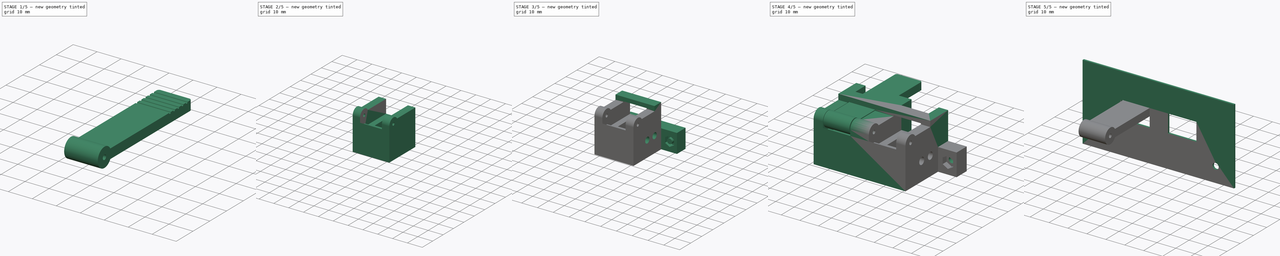
[diagram: build sequence overview — one tinted view per stage of 5, left to right]
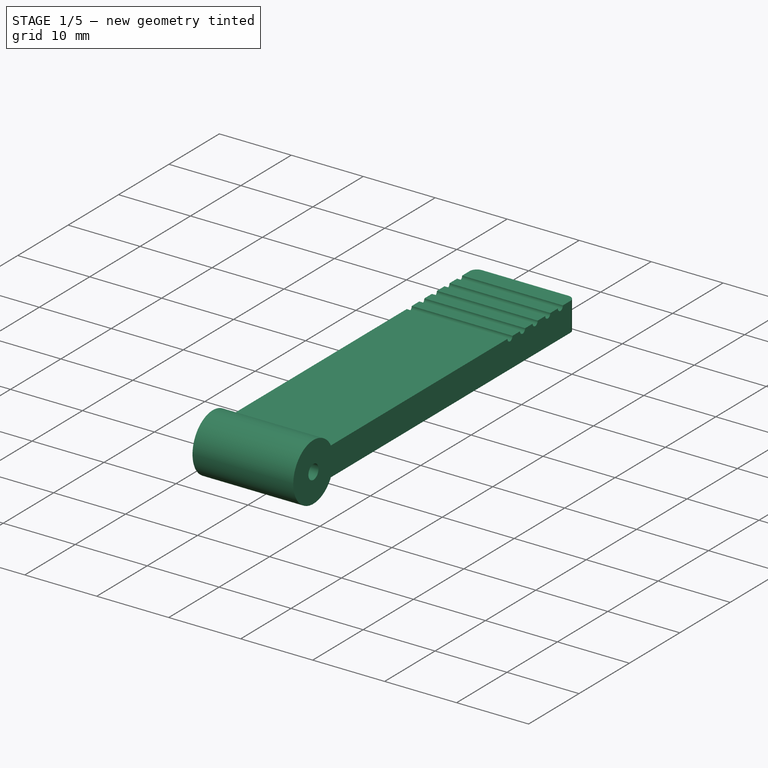
[diagram: stage 1 of 5 — iso view after this stage's code; geometry added in this stage tinted green]
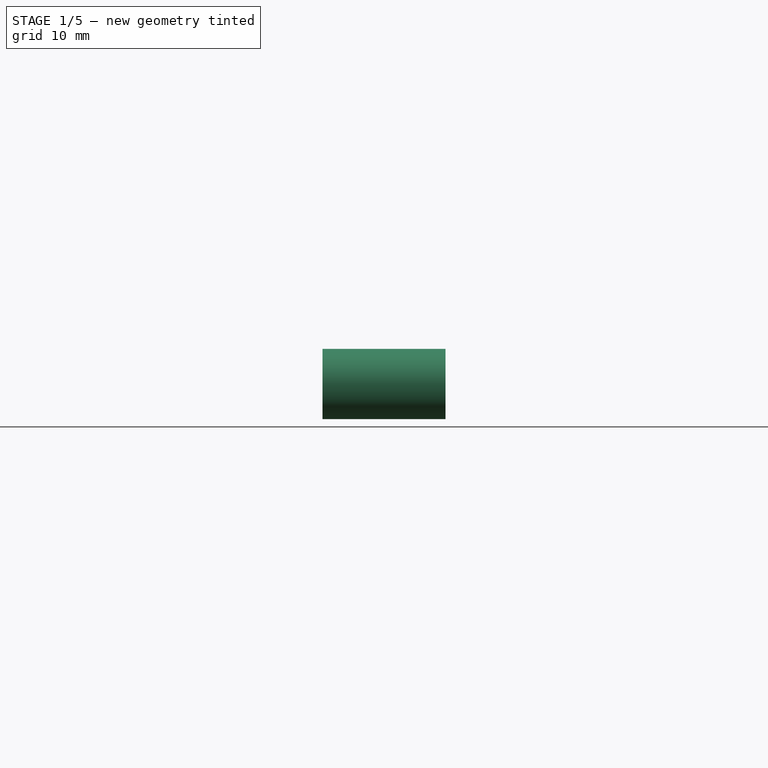
[diagram: stage 1 of 5 — front view after this stage's code; geometry added in this stage tinted green]
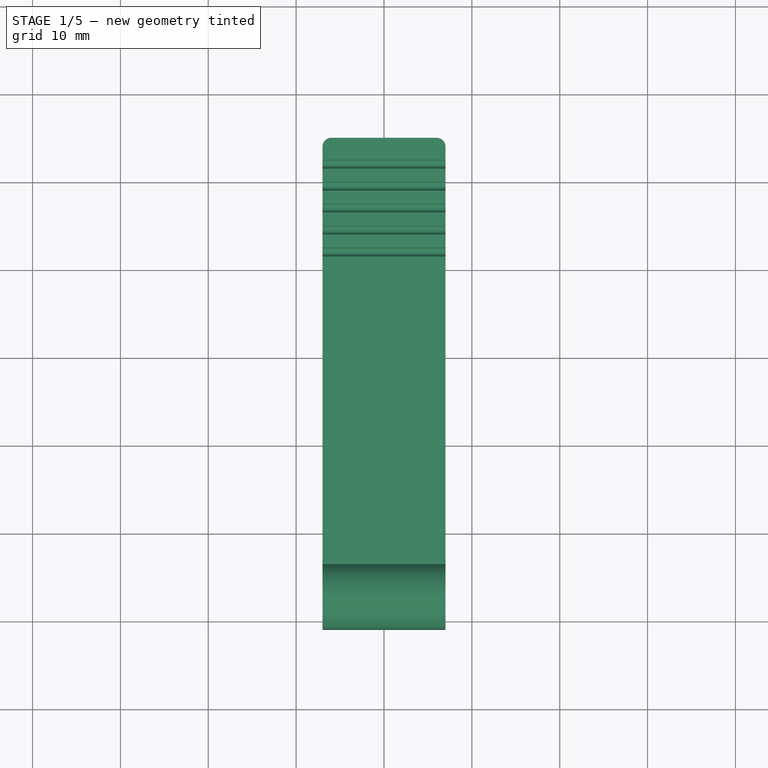
[diagram: stage 1 of 5 — top view after this stage's code; geometry added in this stage tinted green]
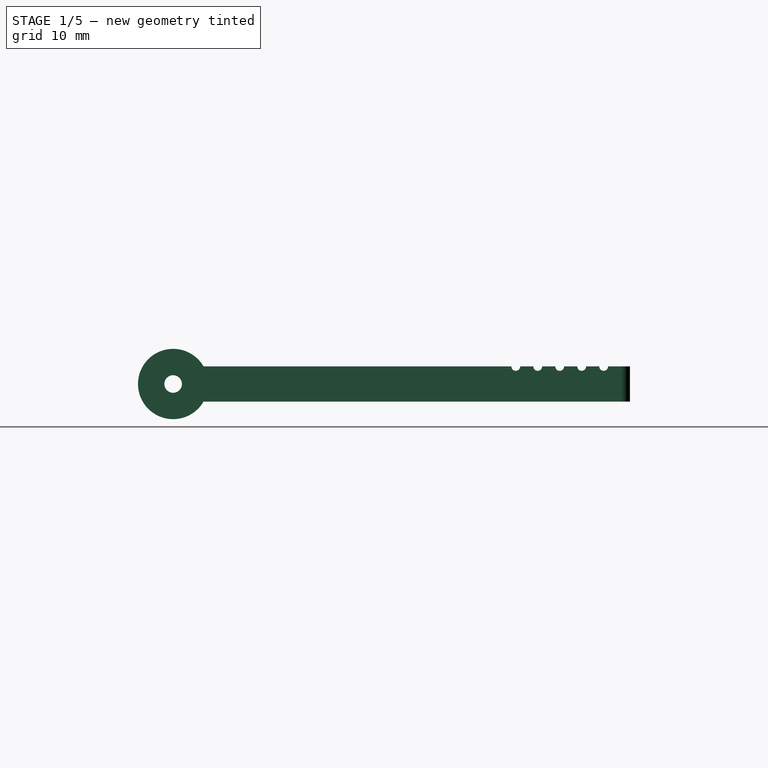
[diagram: stage 1 of 5 — right view after this stage's code; geometry added in this stage tinted green]
FCSTD DOCUMENT  (FreeCAD 1.0R39285 (Git))
Label: rotace_tlacitka
License: All rights reserved
LicenseURL: https://en.wikipedia.org/wiki/All_rights_reserved
objects: Sketcher::SketchObject×20, PartDesign::Pad×10, PartDesign::Pocket×10, PartDesign::SubShapeBinder×7, PartDesign::Fillet×4, PartDesign::Body×4, PartDesign::LinearPattern×2, PartDesign::Mirrored×1, PartDesign::Plane×1, App::Part×1
note: 130 computed .brp shape members not serialized (recipe doc carries the construction recipe); baked Part::Feature solids carry a one-line shape summary decoded from their .brp

FEATURE [Sketcher::SketchObject] Sketch
  ArcFitTolerance = 1e-06
  AttachmentSupport = -> [XY_Plane001]
  FullyConstrained = true
  MakeInternals = false
  MapMode = 5
  sketch-geometry (5):
    g0: LineSegment StartX=-7 StartY=-25 StartZ=0 EndX=7 EndY=-25 EndZ=0
    g1: LineSegment StartX=7 StartY=-25 StartZ=0 EndX=7 EndY=25 EndZ=0
    g2: LineSegment StartX=7 StartY=25 StartZ=0 EndX=-7 EndY=25 EndZ=0
    g3: LineSegment StartX=-7 StartY=25 StartZ=0 EndX=-7 EndY=-25 EndZ=0
    g4: GeomPoint [constr] X=0 Y=0 Z=0
  constraints (12):
    c: Coincident(g0,g1)
    c: Coincident(g1,g2)
    c: Coincident(g2,g3)
    c: Coincident(g3,g0)
    c: Horizontal(g0)
    c: Horizontal(g2)
    c: Vertical(g1)
    c: Vertical(g3)
    c: Symmetric(g2,g0,g4)
    c: Coincident(g4,g-1)
    c: Distance(g2,g2) = 14
    c: DistanceY(g1,g1) = 50
FEATURE [PartDesign::Pad] Pad
  Direction = (0,0,1)
  Length = 4
  Length2 = 10
  Midplane = true
  Profile = -> Sketch
  ReferenceAxis = -> Sketch [N_Axis]
  Refine = true
  Suppressed = false
  Type = 0
FEATURE [Sketcher::SketchObject] Sketch001
  ArcFitTolerance = 1e-06
  AttachmentSupport = -> [Pad]
  ExternalGeometry = -> [Pad]
  FullyConstrained = true
  MakeInternals = false
  MapMode = 5
  Placement = pos=(7,0,0) rot=(0.57735,0.57735,0.57735;2.0944rad)
  sketch-geometry (4):
    g0: Circle CenterX=-27 CenterY=0 CenterZ=0 NormalX=0 NormalY=0 NormalZ=1 AngleXU=0 Radius=1
    g1: Circle CenterX=-27 CenterY=0 CenterZ=0 NormalX=0 NormalY=0 NormalZ=1 AngleXU=0 Radius=4
    g2: GeomPoint [constr] X=-26 Y=0 Z=0
    g3: GeomPoint [constr] X=-25 Y=0 Z=0
  constraints (8):
    c: Diameter(g0) = 2
    c: PointOnObject(g0,g-1)
    c: Coincident(g1,g0)
    c: PointOnObject(g2,g0)
    c: Symmetric(g-3,g-3,g3)
    c: Horizontal(g2,g3)
    c: DistanceX(g0,g3) = 2
    c: Diameter(g1) = 8
FEATURE [PartDesign::Pad] Pad001
  BaseFeature = -> Pad
  Direction = (1,0,0)
  Length = 10
  Length2 = 10
  Profile = -> Sketch001
  ReferenceAxis = -> Sketch001 [N_Axis]
  Refine = true
  Suppressed = false
  Type = 3
  UpToFace = -> Pad [Face4]
FEATURE [Sketcher::SketchObject] Sketch002
  ArcFitTolerance = 1e-06
  AttachmentSupport = -> [Pad001]
  ExternalGeometry = -> [Pad001]
  FullyConstrained = true
  MakeInternals = false
  MapMode = 5
  Placement = pos=(7,0,0) rot=(0.57735,0.57735,0.57735;2.0944rad)
  sketch-geometry (1):
    g0: Circle CenterX=22 CenterY=2 CenterZ=0 NormalX=0 NormalY=0 NormalZ=1 AngleXU=0 Radius=0.5
  constraints (3):
    c: Diameter(g0) = 1
    c: DistanceX(g0,g-3) = 3
    c: PointOnObject(g0,g-4)
FEATURE [PartDesign::Pocket] Pocket
  BaseFeature = -> Pad001
  Direction = (-1,0,0)
  Length = 5
  Length2 = 5
  Profile = -> Sketch002
  ReferenceAxis = -> Sketch002 [N_Axis]
  Refine = true
  Suppressed = false
  Type = 1
FEATURE [PartDesign::LinearPattern] LinearPattern
  BaseFeature = -> Pocket
  Direction = -> Pocket [Edge16]
  Length = 10
  Mode = 0
  Occurrences = 5
  Offset = 2.5
  Originals = -> [Pocket]
  Refine = true
  Suppressed = false
  TransformMode = 0
FEATURE [PartDesign::Fillet] Fillet
  Base = -> LinearPattern [Edge21,Edge8]
  BaseFeature = -> LinearPattern
  Radius = 1
  Refine = true
  SupportTransform = false
  Suppressed = false
  UseAllEdges = false
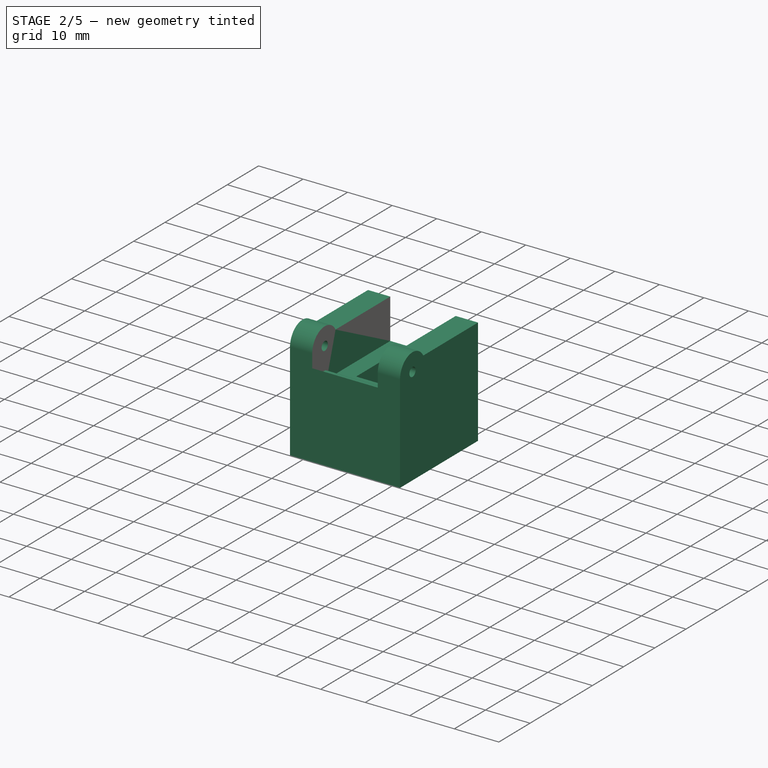
[diagram: stage 2 of 5 — iso view after this stage's code; geometry added in this stage tinted green]
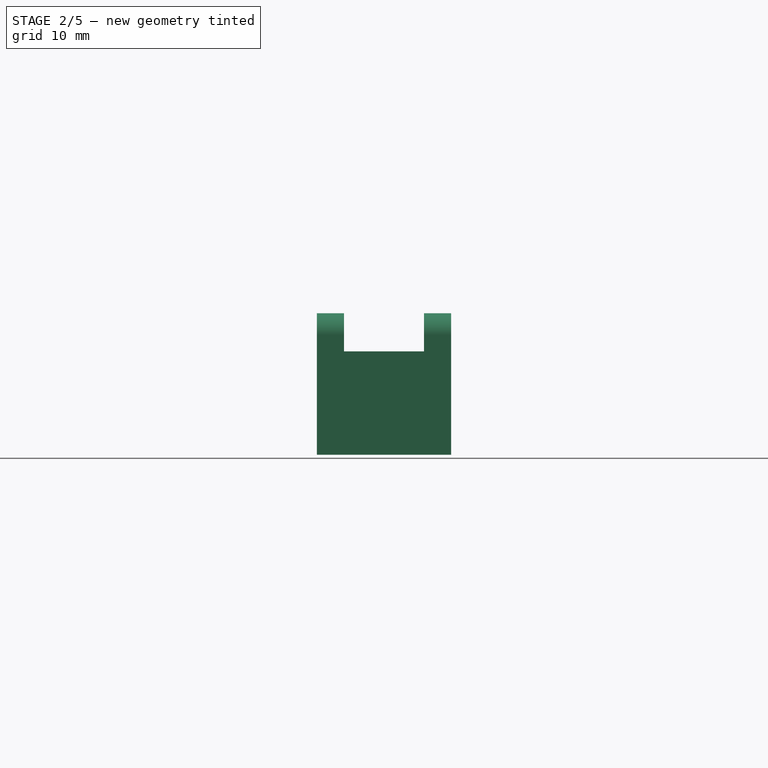
[diagram: stage 2 of 5 — front view after this stage's code; geometry added in this stage tinted green]
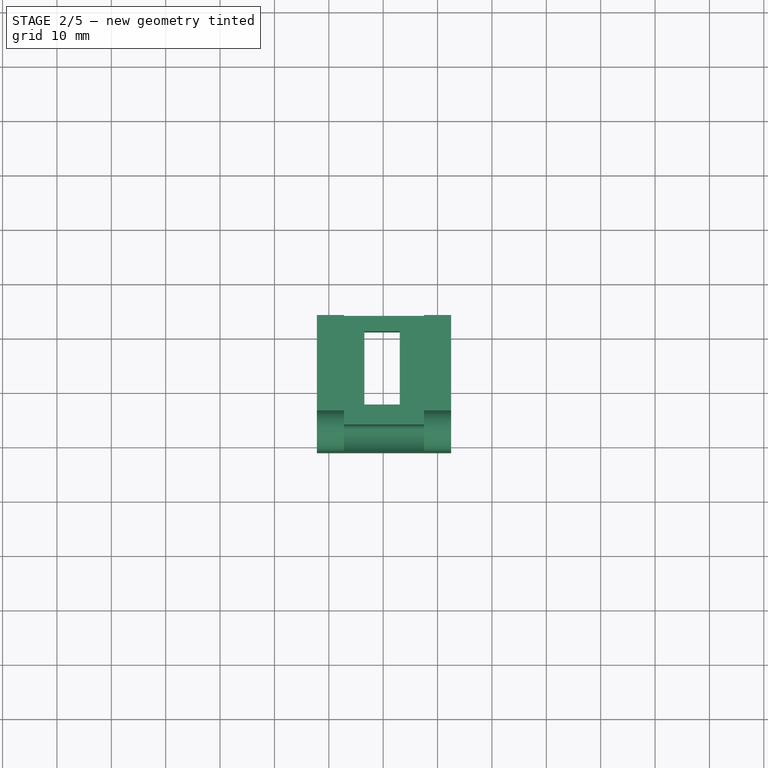
[diagram: stage 2 of 5 — top view after this stage's code; geometry added in this stage tinted green]
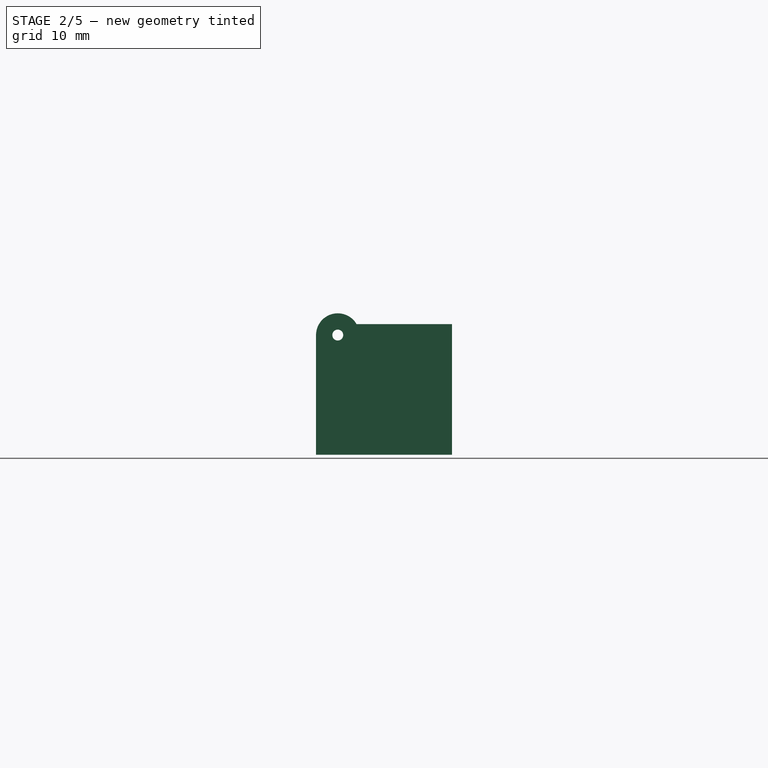
[diagram: stage 2 of 5 — right view after this stage's code; geometry added in this stage tinted green]
FEATURE [PartDesign::Fillet] Fillet001
  Base = -> Fillet [Edge20,Edge24,Edge29,Edge34,Edge37,Edge42,Edge45,Edge43,Edge39,Edge35]
  BaseFeature = -> Fillet
  Radius = 0.5
  Refine = true
  SupportTransform = false
  Suppressed = false
  UseAllEdges = false
FEATURE [PartDesign::SubShapeBinder] Binder
  BindCopyOnChange = 0
  BindMode = 0
  ClaimChildren = false
  Context = -> Part [Body001.Binder.]
  Fuse = false
  MakeFace = true
  OffsetFill = false
  OffsetIntersection = false
  OffsetJoinType = 0
  OffsetOpenResult = false
  PartialLoad = false
  Placement = pos=(-0.2,0,0) rot=(0,0,1;0rad)
  Refine = true
  Relative = true
  Support = -> [Body[Fillet001.Face27]]
  _Version = 2
FEATURE [Sketcher::SketchObject] Sketch003
  ArcFitTolerance = 1e-06
  AttachmentSupport = -> [Binder]
  ExternalGeometry = -> [Binder]
  FullyConstrained = true
  MakeInternals = false
  MapMode = 5
  Placement = pos=(-7.2,0,0) rot=(0.57735,-0.57735,-0.57735;2.0944rad)
  sketch-geometry (6):
    g0: Circle CenterX=27 CenterY=0 CenterZ=0 NormalX=0 NormalY=0 NormalZ=1 AngleXU=0 Radius=1
    g1: ArcOfCircle CenterX=27 CenterY=0 CenterZ=0 NormalX=0 NormalY=0 NormalZ=1 AngleXU=0 Radius=4 StartAngle=0 EndAngle=2.61799
    g2: LineSegment StartX=23.5359 StartY=2 StartZ=0 EndX=6 EndY=2 EndZ=0
    g3: LineSegment StartX=6 StartY=2 StartZ=0 EndX=6 EndY=-22 EndZ=0
    g4: LineSegment StartX=6 StartY=-22 StartZ=0 EndX=31 EndY=-22 EndZ=0
    g5: LineSegment StartX=31 StartY=-22 StartZ=0 EndX=31 EndY=0 EndZ=0
  constraints (15):
    c: Coincident(g0,g-4)
    c: Equal(g0,g-4)
    c: Coincident(g1,g0)
    c: Vertical(g3)
    c: Coincident(g3,g4)
    c: Horizontal(g4)
    c: Coincident(g4,g5)
    c: Vertical(g5)
    c: Coincident(g1,g2)
    c: Tangent(g1,g5) = -1.5708
    c: Equal(g1,g-3)
    c: Tangent(g2,g-5)
    c: Distance(g-3,g4) = 20
    c: Coincident(g2,g3)
    c: DistanceX(g4,g4) = 25
FEATURE [PartDesign::Pad] Pad002
  Direction = (-1,0,0)
  Length = 5
  Length2 = 10
  Placement = pos=(-0.2,0,0) rot=(0,0,1;0rad)
  Profile = -> Sketch003
  ReferenceAxis = -> Sketch003 [N_Axis]
  Refine = true
  Suppressed = false
  Type = 0
FEATURE [Sketcher::SketchObject] Sketch004
  ArcFitTolerance = 1e-06
  AttachmentSupport = -> [Pad002]
  ExternalGeometry = -> [Pad002,Binder]
  FullyConstrained = true
  MakeInternals = false
  MapMode = 5
  Placement = pos=(-7.2,0,0) rot=(0.57735,0.57735,0.57735;2.0944rad)
  sketch-geometry (13):
    g0: LineSegment [constr] StartX=-31 StartY=-12 StartZ=0 EndX=-6 EndY=-12 EndZ=0
    g1: Circle CenterX=-18.5 CenterY=-12 CenterZ=0 NormalX=0 NormalY=0 NormalZ=1 AngleXU=0 Radius=0.6
    g2: Circle CenterX=-11.9 CenterY=-12 CenterZ=0 NormalX=0 NormalY=0 NormalZ=1 AngleXU=0 Radius=0.6
    g3: LineSegment StartX=-31 StartY=-22 StartZ=0 EndX=-6 EndY=-22 EndZ=0
    g4: LineSegment StartX=-6 StartY=-22 StartZ=0 EndX=-6 EndY=-7 EndZ=0
    g5: LineSegment StartX=-6 StartY=-7 StartZ=0 EndX=-26 EndY=-7 EndZ=0
    g6: LineSegment StartX=-31 StartY=-3 StartZ=0 EndX=-31 EndY=-22 EndZ=0
    g7: ArcOfCircle CenterX=-27 CenterY=0 CenterZ=0 NormalX=0 NormalY=0 NormalZ=1 AngleXU=0 Radius=5 StartAngle=3.78509 EndAngle=4.71239
    g8: LineSegment StartX=-26 StartY=-6 StartZ=0 EndX=-26 EndY=-7 EndZ=0
    g9: Circle [constr] CenterX=-27 CenterY=0 CenterZ=0 NormalX=0 NormalY=0 NormalZ=1 AngleXU=0 Radius=4
    g10: GeomPoint [constr] X=-27 Y=-4 Z=0
    g11: GeomPoint [constr] X=-27 Y=-5 Z=0
    g12: ArcOfCircle CenterX=-27 CenterY=-6 CenterZ=0 NormalX=0 NormalY=0 NormalZ=1 AngleXU=0 Radius=1 StartAngle=-9e-16 EndAngle=1.57079
  constraints (34):
    c: PointOnObject(g0,g-3)
    c: PointOnObject(g0,g-4)
    c: Horizontal(g0)
    c: Symmetric(g0,g0,g1)
    c: PointOnObject(g2,g0)
    c: DistanceX(g1,g2) = 6.6
    c: Equal(g1,g2)
    c: Diameter(g1) = 1.2
    c: Coincident(g3,g4)
    c: Coincident(g4,g5)
    c: Coincident(g6,g3)
    c: Horizontal(g3)
    c: Horizontal(g5)
    c: Vertical(g4)
    c: Vertical(g6)
    c: Coincident(g3,g-3)
    c: PointOnObject(g4,g-4)
    c: Coincident(g7,g-5)
    c: Vertical(g8)
    c: Coincident(g5,g8)
    c: Coincident(g6,g7)
    c: DistanceY(g0,g4) = 5
    c: Coincident(g9,g7)
    c: PointOnObject(g-6,g9)
    c: PointOnObject(g10,g9)
    c: PointOnObject(g11,g7)
    c: Vertical(g10,g11)
    c: Vertical(g10,g7)
    c: Distance(g10,g11) = 1
    c: Tangent(g7,g12) = 1.5708
    c: Tangent(g8,g12) = 1.5708
    c: Radius(g12) = 1
    c: DistanceY(g12,g11) = 1
    c: DistanceY(g0,g-7) = 10
FEATURE [PartDesign::Pad] Pad003
  BaseFeature = -> Pad002
  Direction = (1,0,0)
  Length = 4.5
  Length2 = 10
  Offset = -0.5
  Placement = pos=(-0.2,0,0) rot=(0,0,1;0rad)
  Profile = -> Sketch004
  ReferenceAxis = -> Sketch004 [N_Axis]
  Refine = true
  Suppressed = false
  Type = 3
  UpToFace = -> Fillet001 [Face1]
FEATURE [Sketcher::SketchObject] Sketch005
  ArcFitTolerance = 1e-06
  AttachmentSupport = -> [Pad003]
  ExternalGeometry = -> [Pad003]
  FullyConstrained = true
  MakeInternals = false
  MapMode = 5
  Placement = pos=(-0.2,0,-22) rot=(1,0,0;3.14159rad)
  sketch-geometry (4):
    g0: LineSegment StartX=-3.25 StartY=22.3 StartZ=0 EndX=-3.25 EndY=8.8 EndZ=0
    g1: LineSegment StartX=-3.25 StartY=8.8 StartZ=0 EndX=3.25 EndY=8.8 EndZ=0
    g2: LineSegment StartX=3.25 StartY=8.8 StartZ=0 EndX=3.25 EndY=22.3 EndZ=0
    g3: LineSegment StartX=3.25 StartY=22.3 StartZ=0 EndX=-3.25 EndY=22.3 EndZ=0
  constraints (11):
    c: Coincident(g0,g1)
    c: Coincident(g1,g2)
    c: Coincident(g2,g3)
    c: Coincident(g3,g0)
    c: Vertical(g0)
    c: Vertical(g2)
    c: Horizontal(g3)
    c: DistanceX(g3,g3) = 6.5
    c: DistanceY(g2,g2) = 13.5
    c: DistanceY(g1,g-3) = 2.5
    c: Symmetric(g1,g0,g-2)
FEATURE [PartDesign::Pocket] Pocket001
  BaseFeature = -> Pad003
  Direction = (0,0,1)
  Length = 5
  Length2 = 5
  Placement = pos=(-0.2,0,0) rot=(0,0,1;0rad)
  Profile = -> Sketch005
  ReferenceAxis = -> Sketch005 [N_Axis]
  Refine = true
  Suppressed = false
  Type = 1
FEATURE [Sketcher::SketchObject] Sketch006
  ArcFitTolerance = 1e-06
  AttachmentSupport = -> [Pocket001]
  ExternalGeometry = -> [Pocket001]
  FullyConstrained = true
  MakeInternals = false
  MapMode = 5
  Placement = pos=(7.5,0,0) rot=(0.57735,0.57735,0.57735;2.0944rad)
  sketch-geometry (6):
    g0: Circle CenterX=-27 CenterY=0 CenterZ=0 NormalX=0 NormalY=0 NormalZ=1 AngleXU=0 Radius=1
    g1: ArcOfCircle CenterX=-27 CenterY=0 CenterZ=0 NormalX=0 NormalY=0 NormalZ=1 AngleXU=0 Radius=4 StartAngle=0.523599 EndAngle=3.14159
    g2: LineSegment StartX=-31 StartY=5e-16 StartZ=0 EndX=-31 EndY=-22 EndZ=0
    g3: LineSegment StartX=-31 StartY=-22 StartZ=0 EndX=-6 EndY=-22 EndZ=0
    g4: LineSegment StartX=-6 StartY=-22 StartZ=0 EndX=-6 EndY=2 EndZ=0
    g5: LineSegment StartX=-6 StartY=2 StartZ=0 EndX=-23.5359 EndY=2 EndZ=0
  constraints (13):
    c: Coincident(g0,g-4)
    c: Coincident(g1,g0)
    c: Coincident(g1,g-4)
    c: Tangent(g1,g2) = -1.5708
    c: Coincident(g2,g3)
    c: Coincident(g3,g-7)
    c: Horizontal(g3)
    c: Coincident(g3,g4)
    c: Coincident(g4,g-5)
    c: Coincident(g4,g5)
    c: Coincident(g5,g1)
    c: Horizontal(g5)
    c: Equal(g0,g-3)
FEATURE [PartDesign::Pad] Pad004
  BaseFeature = -> Pocket001
  Direction = (1,0,0)
  Length = 5
  Length2 = 10
  Placement = pos=(-0.2,0,0) rot=(0,0,1;0rad)
  Profile = -> Sketch006
  ReferenceAxis = -> Sketch006 [N_Axis]
  Refine = true
  Suppressed = false
  Type = 0
FEATURE [Sketcher::SketchObject] Sketch012
  ArcFitTolerance = 1e-06
  AttachmentSupport = -> [Fillet001]
  FullyConstrained = true
  MakeInternals = false
  MapMode = 5
  Placement = pos=(0,0,-2) rot=(1,0,0;3.14159rad)
  sketch-geometry (1):
    g0: Circle CenterX=0 CenterY=4 CenterZ=0 NormalX=0 NormalY=0 NormalZ=1 AngleXU=0 Radius=3.75
  constraints (3):
    c: PointOnObject(g0,g-2)
    c: Diameter(g0) = 7.5
    c: Distance(g0,g-1) = 4
FEATURE [PartDesign::Pocket] Pocket004
  BaseFeature = -> Fillet001
  Direction = (0,0,1)
  Length = 1
  Length2 = 5
  Profile = -> Sketch012
  ReferenceAxis = -> Sketch012 [N_Axis]
  Refine = true
  Suppressed = false
  Type = 0
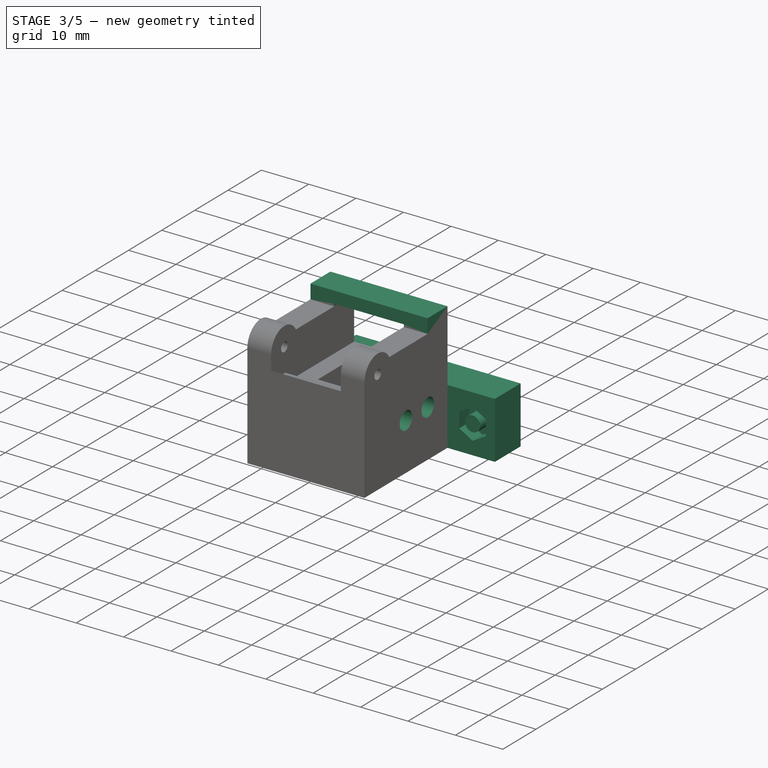
[diagram: stage 3 of 5 — iso view after this stage's code; geometry added in this stage tinted green]
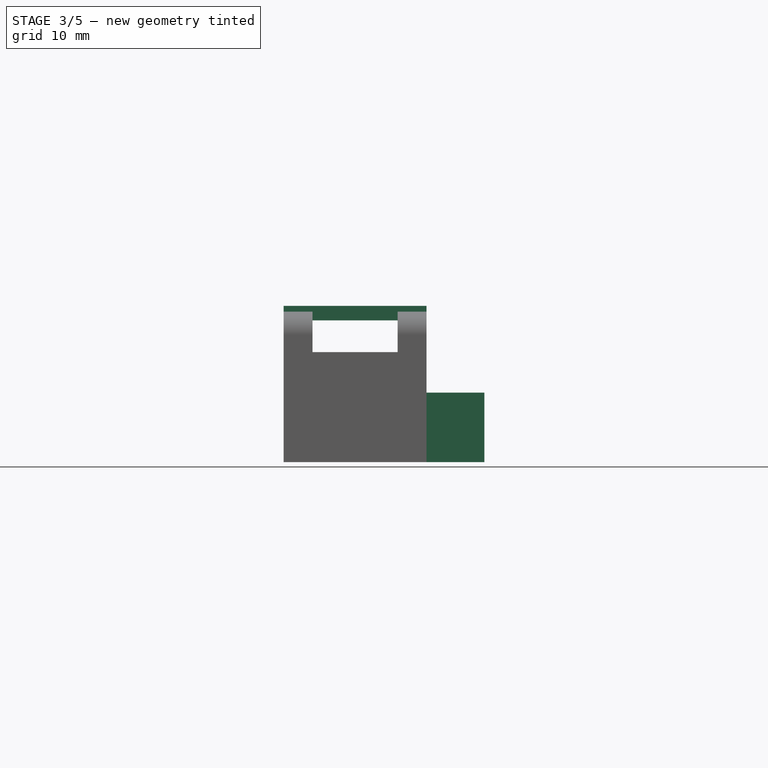
[diagram: stage 3 of 5 — front view after this stage's code; geometry added in this stage tinted green]
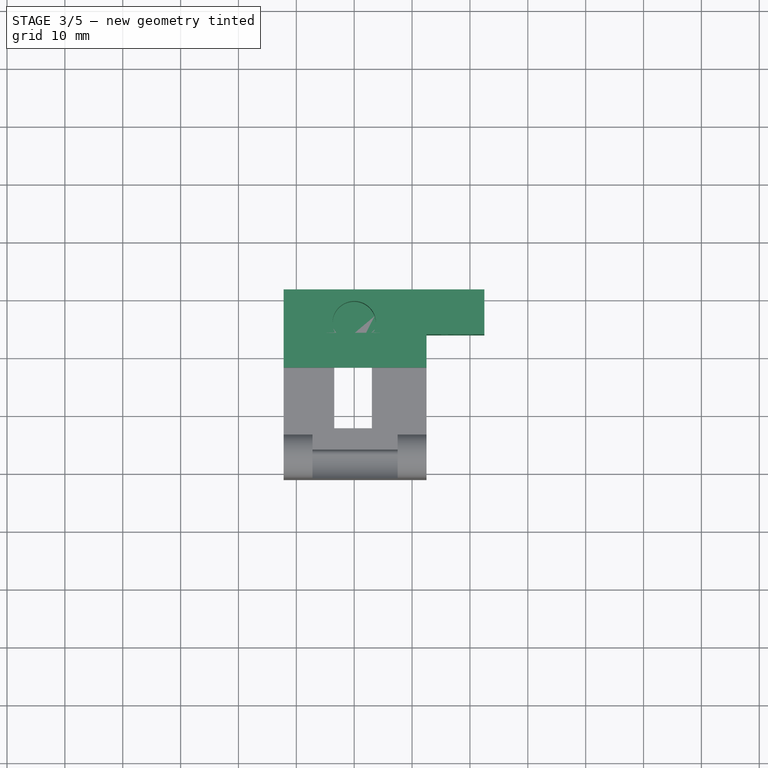
[diagram: stage 3 of 5 — top view after this stage's code; geometry added in this stage tinted green]
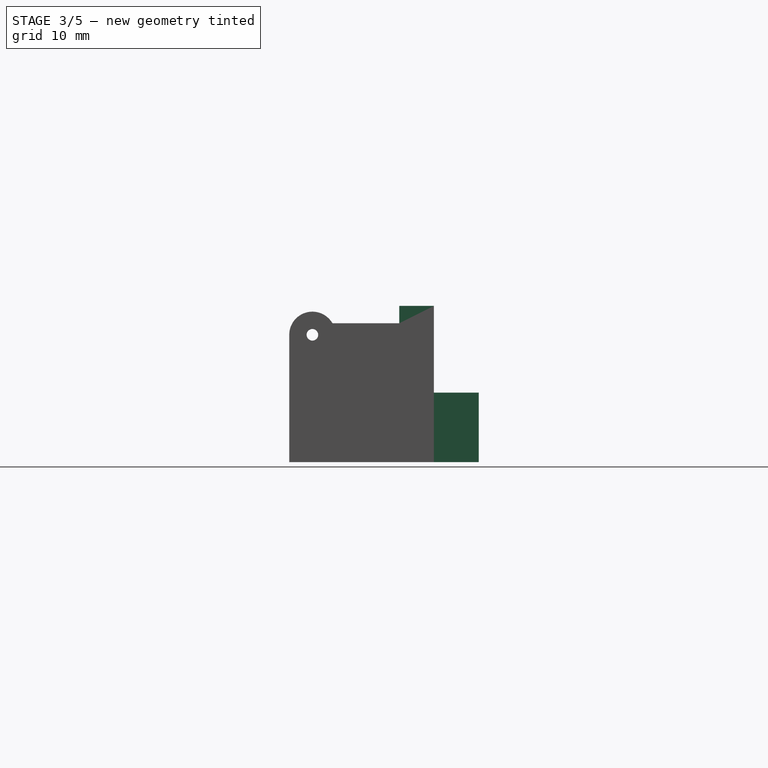
[diagram: stage 3 of 5 — right view after this stage's code; geometry added in this stage tinted green]
FEATURE [Sketcher::SketchObject] Sketch007
  ArcFitTolerance = 1e-06
  AttachmentSupport = -> [Pad004]
  ExternalGeometry = -> [Pad004]
  FullyConstrained = true
  MakeInternals = false
  MapMode = 5
  Placement = pos=(-0.2,-6,0) rot=(0,0.707107,0.707107;3.14159rad)
  sketch-geometry (8):
    g0: LineSegment StartX=-12.7 StartY=2 StartZ=0 EndX=-7.7 EndY=2 EndZ=0
    g1: LineSegment StartX=12 StartY=2 StartZ=0 EndX=12 EndY=5 EndZ=0
    g2: LineSegment StartX=12 StartY=5 StartZ=0 EndX=-12.7 EndY=5 EndZ=0
    g3: LineSegment StartX=-12.7 StartY=5 StartZ=0 EndX=-12.7 EndY=2 EndZ=0
    g4: LineSegment StartX=7 StartY=2 StartZ=0 EndX=7 EndY=2.5 EndZ=0
    g5: LineSegment StartX=7 StartY=2.5 StartZ=0 EndX=-7.7 EndY=2.5 EndZ=0
    g6: LineSegment StartX=-7.7 StartY=2.5 StartZ=0 EndX=-7.7 EndY=2 EndZ=0
    g7: LineSegment StartX=7 StartY=2 StartZ=0 EndX=12 EndY=2 EndZ=0
  constraints (22):
    c: Coincident(g7,g1)
    c: Coincident(g1,g2)
    c: Coincident(g2,g3)
    c: Coincident(g3,g0)
    c: Horizontal(g2)
    c: Vertical(g1)
    c: Vertical(g3)
    c: Coincident(g0,g-4)
    c: Coincident(g7,g-3)
    c: Coincident(g4,g5)
    c: Coincident(g5,g6)
    c: Horizontal(g5)
    c: Vertical(g4)
    c: Vertical(g6)
    c: PointOnObject(g0,g-4)
    c: DistanceY(g1,g1) = 3
    c: Coincident(g4,g7)
    c: Horizontal(g7)
    c: Coincident(g0,g6)
    c: PointOnObject(g-4,g6)
    c: PointOnObject(g-3,g4)
    c: Distance(g4,g4) = 0.5
FEATURE [PartDesign::Pad] Pad005
  BaseFeature = -> Pad004
  Direction = (0,1,-2e-16)
  Length = 6
  Length2 = 10
  Placement = pos=(-0.2,0,0) rot=(0,0,1;0rad)
  Profile = -> Sketch007
  ReferenceAxis = -> Sketch007 [N_Axis]
  Refine = true
  Reversed = true
  Suppressed = false
  Type = 0
FEATURE [PartDesign::Body] Body  label="páčka"
  AllowCompound = false
  Group = -> [Sketch,Pad,Sketch001,Pad001,Sketch002,Pocket,LinearPattern,Fillet,Fillet001,Sketch012,Pocket004]
  Origin = -> Origin001
  Tip = -> Pocket004
FEATURE [Sketcher::SketchObject] Sketch013
  ArcFitTolerance = 1e-06
  AttachmentSupport = -> [Pad005]
  ExternalGeometry = -> [Pad005]
  FullyConstrained = true
  MakeInternals = false
  MapMode = 5
  Placement = pos=(3.05,0,0) rot=(0.57735,-0.57735,-0.57735;2.0944rad)
  sketch-geometry (4):
    g0: GeomPoint X=12.5 Y=-12 Z=0
    g1: Circle CenterX=11.9 CenterY=-12 CenterZ=0 NormalX=0 NormalY=0 NormalZ=1 AngleXU=0 Radius=1.9
    g2: Circle CenterX=18.5 CenterY=-12 CenterZ=0 NormalX=0 NormalY=0 NormalZ=1 AngleXU=0 Radius=1.9
    g3: GeomPoint X=13.8 Y=-12 Z=0
  constraints (9):
    c: PointOnObject(g0,g-4)
    c: Coincident(g1,g-4)
    c: Coincident(g2,g-3)
    c: PointOnObject(g3,g1)
    c: Horizontal(g3,g0)
    c: Horizontal(g0,g1)
    c: Equal(g1,g2)
    c: Distance(g0,g3) = 1.3
    c: Diameter(g2) = 3.8
FEATURE [PartDesign::Pocket] Pocket005
  BaseFeature = -> Pad005
  Direction = (1,0,0)
  Length = 0
  Length2 = 5
  Placement = pos=(-0.2,0,0) rot=(0,0,1;0rad)
  Profile = -> Sketch013
  ReferenceAxis = -> Sketch013 [N_Axis]
  Refine = true
  Suppressed = false
  Type = 3
  UpToFace = -> Pad005 [Face29]
FEATURE [PartDesign::SubShapeBinder] Binder001
  BindCopyOnChange = 0
  BindMode = 0
  ClaimChildren = false
  Context = -> Part [Body001.Binder001.]
  Fuse = false
  MakeFace = true
  OffsetFill = false
  OffsetIntersection = false
  OffsetJoinType = 0
  OffsetOpenResult = false
  PartialLoad = false
  Refine = true
  Relative = true
  Support = -> [Body[Pocket004.Face6]]
  _Version = 2
FEATURE [Sketcher::SketchObject] Sketch014
  ArcFitTolerance = 1e-06
  AttachmentSupport = -> [Pocket005]
  ExternalGeometry = -> [Binder001,Pocket005]
  FullyConstrained = true
  MakeInternals = false
  MapMode = 5
  Placement = pos=(-0.2,0,-22) rot=(1,0,0;3.14159rad)
  sketch-geometry (6):
    g0: GeomPoint X=0.2 Y=0.25 Z=0
    g1: GeomPoint X=0.2 Y=-1.75 Z=0
    g2: LineSegment StartX=-12 StartY=6 StartZ=0 EndX=-12 EndY=-1.75 EndZ=0
    g3: LineSegment StartX=-12 StartY=-1.75 StartZ=0 EndX=22.7 EndY=-1.75 EndZ=0
    g4: LineSegment StartX=22.7 StartY=-1.75 StartZ=0 EndX=22.7 EndY=6 EndZ=0
    g5: LineSegment StartX=22.7 StartY=6 StartZ=0 EndX=-12 EndY=6 EndZ=0
  constraints (15):
    c: Distance(g0,g1) = 2
    c: Coincident(g2,g3)
    c: Coincident(g3,g4)
    c: Coincident(g5,g2)
    c: Vertical(g2)
    c: Vertical(g4)
    c: Horizontal(g3)
    c: Coincident(g2,g-4)
    c: PointOnObject(g1,g3)
    c: Vertical(g1,g0)
    c: PointOnObject(g0,g-3)
    c: Vertical(g0,g-3)
    c: Coincident(g5,g4)
    c: Parallel(g5,g-4)
    c: DistanceX(g-4,g4) = 10
FEATURE [PartDesign::Pad] Pad006
  BaseFeature = -> Pocket005
  Direction = (0,0,-1)
  Length = 12
  Length2 = 10
  Placement = pos=(-0.2,0,0) rot=(0,0,1;0rad)
  Profile = -> Sketch014
  ReferenceAxis = -> Sketch014 [N_Axis]
  Refine = true
  Reversed = true
  Suppressed = false
  Type = 0
FEATURE [Sketcher::SketchObject] Sketch015
  ArcFitTolerance = 1e-06
  AttachmentSupport = -> [Pad006]
  ExternalGeometry = -> [Binder001]
  FullyConstrained = true
  MakeInternals = false
  MapMode = 5
  Placement = pos=(-0.2,0,-7) rot=(0,0,1;0rad)
  sketch-geometry (1):
    g0: Circle CenterX=0.2 CenterY=-4 CenterZ=0 NormalX=0 NormalY=0 NormalZ=1 AngleXU=0 Radius=3.75
  constraints (2):
    c: Coincident(g0,g-3)
    c: Equal(g0,g-3)
FEATURE [PartDesign::Pocket] Pocket006
  BaseFeature = -> Pad006
  Direction = (0,0,-1)
  Length = 12
  Length2 = 5
  Placement = pos=(-0.2,0,0) rot=(0,0,1;0rad)
  Profile = -> Sketch015
  ReferenceAxis = -> Sketch015 [N_Axis]
  Refine = true
  Suppressed = false
  Type = 0
FEATURE [Sketcher::SketchObject] Sketch016
  ArcFitTolerance = 1e-06
  AttachmentSupport = -> [Pocket006]
  ExternalGeometry = -> [Pocket006]
  FullyConstrained = true
  MakeInternals = false
  MapMode = 5
  Placement = pos=(-0.2,-6,0) rot=(1,0,0;1.5708rad)
  sketch-geometry (9):
    g0: Circle CenterX=18 CenterY=-16 CenterZ=0 NormalX=0 NormalY=0 NormalZ=1 AngleXU=0 Radius=1.6
    g1: LineSegment StartX=18 StartY=-12.7668 StartZ=0 EndX=15.2 EndY=-14.3834 EndZ=0
    g2: LineSegment StartX=15.2 StartY=-14.3834 StartZ=0 EndX=15.2 EndY=-17.6166 EndZ=0
    g3: LineSegment StartX=15.2 StartY=-17.6166 StartZ=0 EndX=18 EndY=-19.2332 EndZ=0
    g4: LineSegment StartX=18 StartY=-19.2332 StartZ=0 EndX=20.8 EndY=-17.6166 EndZ=0
    g5: LineSegment StartX=20.8 StartY=-17.6166 StartZ=0 EndX=20.8 EndY=-14.3834 EndZ=0
    g6: LineSegment StartX=20.8 StartY=-14.3834 StartZ=0 EndX=18 EndY=-12.7668 EndZ=0
    g7: Circle [constr] CenterX=18 CenterY=-16 CenterZ=0 NormalX=0 NormalY=0 NormalZ=1 AngleXU=0 Radius=3.23316
    g8: LineSegment [constr] StartX=22.7 StartY=-16 StartZ=0 EndX=-12 EndY=-16 EndZ=0
  constraints (22):
    c: Diameter(g0) = 3.2
    c: Coincident(g1,g2)
    c: Coincident(g2,g3)
    c: Coincident(g3,g4)
    c: Coincident(g4,g5)
    c: Coincident(g5,g6)
    c: Coincident(g6,g1)
    c: Equal(g1, g2-g6) x5
    c: PointOnObject(g1,g7)
    c: PointOnObject(g2,g7)
    c: PointOnObject(g3,g7)
    c: PointOnObject(g4,g7)
    c: PointOnObject(g5,g7)
    c: PointOnObject(g6,g7)
    c: Coincident(g7,g0)
    c: Distance(g3,g6) = 5.6
    c: Symmetric(g-4,g-4,g8)
    c: PointOnObject(g8,g-3)
    c: Horizontal(g8)
    c: PointOnObject(g0,g8)
    c: Vertical(g5)
    c: DistanceX(g8,g0) = 30
FEATURE [PartDesign::Pocket] Pocket007
  BaseFeature = -> Pocket006
  Direction = (0,1,-2e-16)
  Length = 3
  Length2 = 5
  Placement = pos=(-0.2,0,0) rot=(0,0,1;0rad)
  Profile = -> Sketch016
  ReferenceAxis = -> Sketch016 [N_Axis]
  Refine = true
  Suppressed = false
  Type = 0
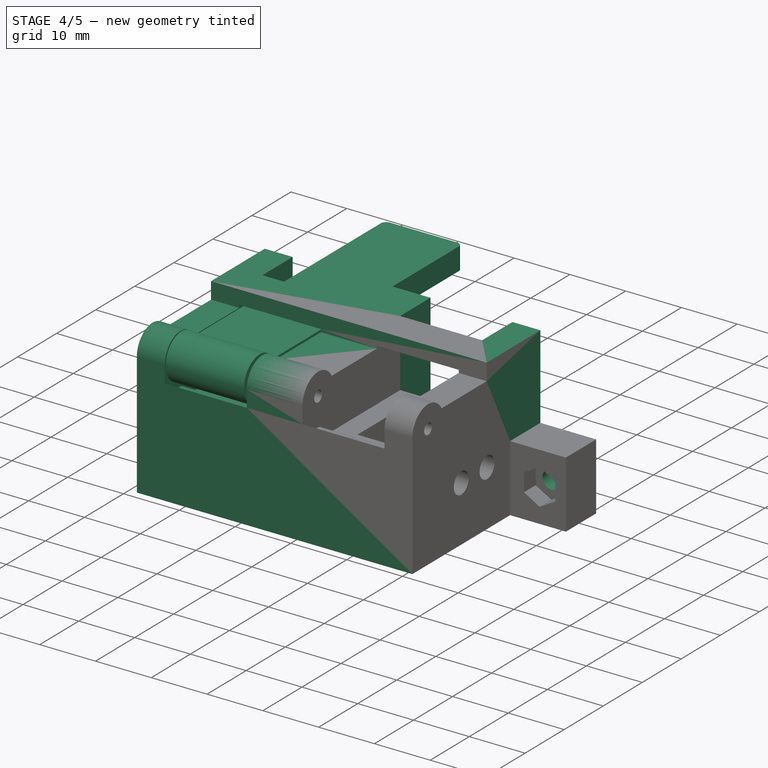
[diagram: stage 4 of 5 — iso view after this stage's code; geometry added in this stage tinted green]
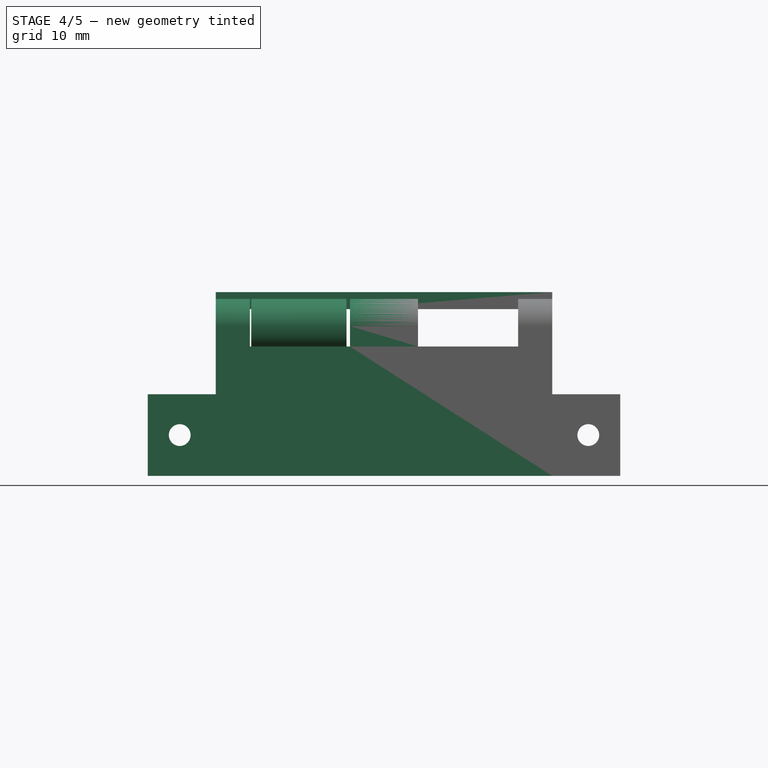
[diagram: stage 4 of 5 — front view after this stage's code; geometry added in this stage tinted green]
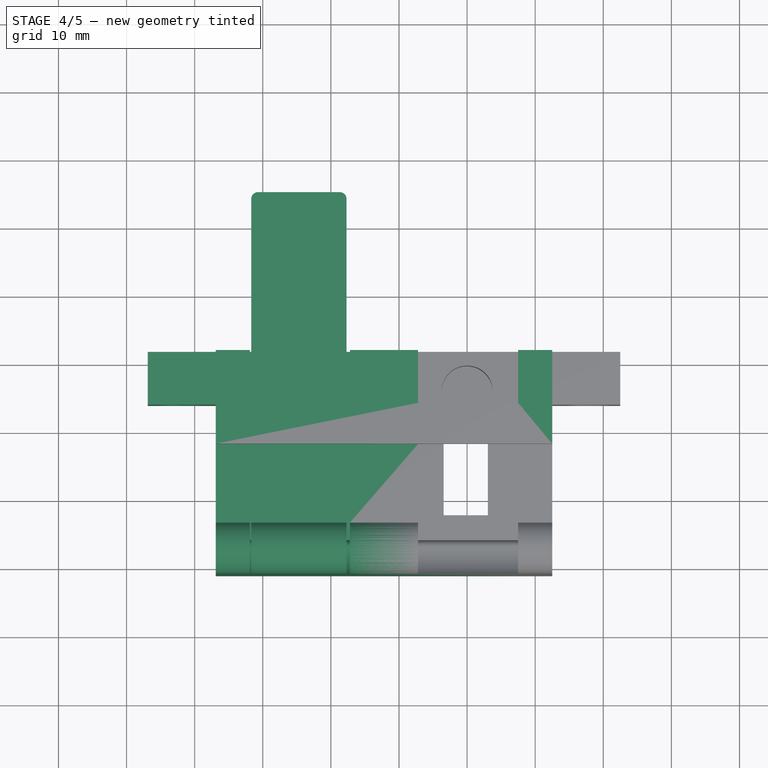
[diagram: stage 4 of 5 — top view after this stage's code; geometry added in this stage tinted green]
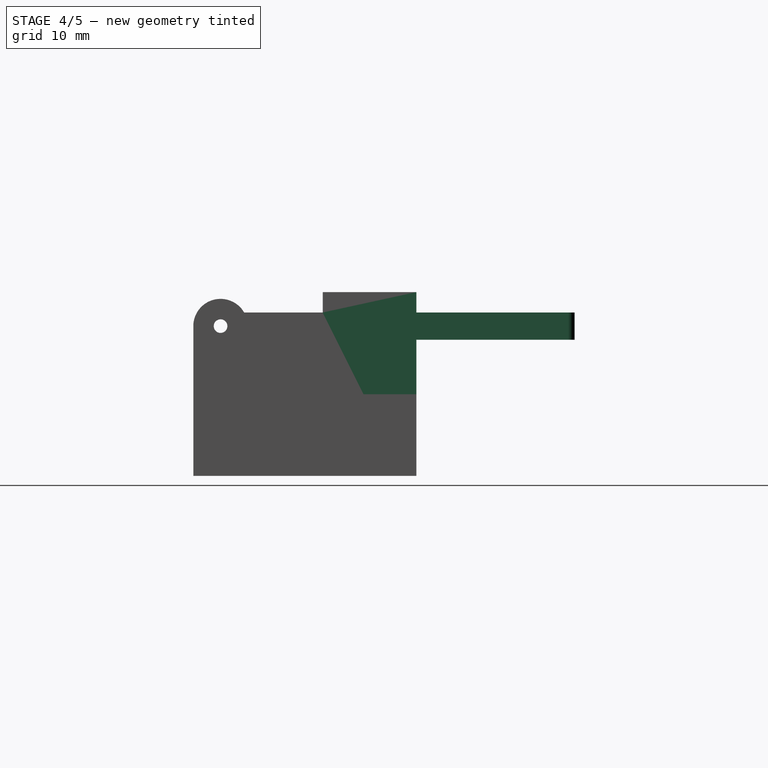
[diagram: stage 4 of 5 — right view after this stage's code; geometry added in this stage tinted green]
FEATURE [Sketcher::SketchObject] Sketch017
  ArcFitTolerance = 1e-06
  AttachmentSupport = -> [Pocket007]
  ExternalGeometry = -> [Pocket007]
  FullyConstrained = true
  MakeInternals = false
  MapMode = 5
  Placement = pos=(-0.2,-6,0) rot=(1,0,0;1.5708rad)
  sketch-geometry (1):
    g0: Circle CenterX=18 CenterY=-16 CenterZ=0 NormalX=0 NormalY=0 NormalZ=1 AngleXU=0 Radius=1.6
  constraints (2):
    c: Coincident(g0,g-3)
    c: Equal(g0,g-3)
FEATURE [PartDesign::Pocket] Pocket008
  BaseFeature = -> Pocket007
  Direction = (0,1,-2e-16)
  Length = 5
  Length2 = 5
  Placement = pos=(-0.2,0,0) rot=(0,0,1;0rad)
  Profile = -> Sketch017
  ReferenceAxis = -> Sketch017 [N_Axis]
  Refine = true
  Suppressed = false
  Type = 1
FEATURE [Sketcher::SketchObject] Sketch018
  ArcFitTolerance = 1e-06
  AttachmentSupport = -> [Pocket008]
  ExternalGeometry = -> [Pocket008]
  FullyConstrained = true
  MakeInternals = false
  MapMode = 5
  Placement = pos=(-0.2,-6,0) rot=(0,0.707107,0.707107;3.14159rad)
  sketch-geometry (8):
    g0: LineSegment StartX=12 StartY=5 StartZ=0 EndX=7 EndY=5 EndZ=0
    g1: LineSegment StartX=7 StartY=5 StartZ=0 EndX=7 EndY=-10 EndZ=0
    g2: LineSegment StartX=7 StartY=-10 StartZ=0 EndX=12 EndY=-10 EndZ=0
    g3: LineSegment StartX=12 StartY=-10 StartZ=0 EndX=12 EndY=5 EndZ=0
    g4: LineSegment StartX=-12.7 StartY=5 StartZ=0 EndX=-12.7 EndY=-10 EndZ=0
    g5: LineSegment StartX=-12.7 StartY=-10 StartZ=0 EndX=-7.7 EndY=-10 EndZ=0
    g6: LineSegment StartX=-7.7 StartY=-10 StartZ=0 EndX=-7.7 EndY=5 EndZ=0
    g7: LineSegment StartX=-7.7 StartY=5 StartZ=0 EndX=-12.7 EndY=5 EndZ=0
  constraints (22):
    c: Coincident(g0,g1)
    c: Coincident(g1,g2)
    c: Coincident(g2,g3)
    c: Coincident(g3,g0)
    c: Horizontal(g0)
    c: Horizontal(g2)
    c: Vertical(g1)
    c: Vertical(g3)
    c: Coincident(g0,g-3)
    c: PointOnObject(g1,g-4)
    c: PointOnObject(g-5,g1)
    c: Coincident(g4,g5)
    c: Coincident(g5,g6)
    c: Coincident(g6,g7)
    c: Coincident(g7,g4)
    c: Vertical(g4)
    c: Vertical(g6)
    c: Horizontal(g5)
    c: Horizontal(g7)
    c: Coincident(g4,g-3)
    c: PointOnObject(g5,g-4)
    c: PointOnObject(g-5,g6)
FEATURE [PartDesign::Pad] Pad007
  BaseFeature = -> Pocket008
  Direction = (0,1,-2e-16)
  Length = 10
  Length2 = 10
  Placement = pos=(-0.2,0,0) rot=(0,0,1;0rad)
  Profile = -> Sketch018
  ReferenceAxis = -> Sketch018 [N_Axis]
  Refine = true
  Suppressed = false
  Type = 3
  UpToFace = -> Pocket008 [Face20]
FEATURE [PartDesign::Mirrored] Mirrored
  BaseFeature = -> Pad007
  MirrorPlane = -> Pad007 [Face42]
  Placement = pos=(-0.2,0,0) rot=(0,0,1;0rad)
  Refine = true
  Suppressed = false
  TransformMode = 1
FEATURE [PartDesign::Plane] DatumPlane
  AttachmentOffset = pos=(0,0,-4) rot=(0,0,1;0rad)
  AttachmentSupport = -> [Mirrored]
  Length = 83.8917
  MapMode = 5
  Placement = pos=(-0.2,-27,-9e-16) rot=(1,0,0;1.5708rad)
  ResizeMode = 0
  Width = 61.9917
FEATURE [Sketcher::SketchObject] Sketch019
  ArcFitTolerance = 1e-06
  AttachmentSupport = -> [DatumPlane]
  ExternalGeometry = -> [Mirrored]
  FullyConstrained = true
  MakeInternals = false
  MapMode = 5
  Placement = pos=(-0.2,-27,-9e-16) rot=(1,0,0;1.5708rad)
  sketch-geometry (2):
    g0: Circle CenterX=-12 CenterY=-22 CenterZ=0 NormalX=0 NormalY=0 NormalZ=1 AngleXU=0 Radius=6
    g1: Circle CenterX=-12 CenterY=-22 CenterZ=0 NormalX=0 NormalY=0 NormalZ=1 AngleXU=0 Radius=3.5
  constraints (4):
    c: Diameter(g0) = 12
    c: Symmetric(g-3,g-3,g0)
    c: Diameter(g1) = 7
    c: Coincident(g1,g0)
FEATURE [PartDesign::Pocket] Pocket009
  BaseFeature = -> Mirrored
  Direction = (0,1,-2e-16)
  Length = 5
  Length2 = 5
  Midplane = true
  Placement = pos=(-0.2,0,0) rot=(0,0,1;0rad)
  Profile = -> Sketch019
  ReferenceAxis = -> Sketch019 [N_Axis]
  Refine = true
  Suppressed = false
  Type = 0
FEATURE [PartDesign::SubShapeBinder] Binder004
  BindCopyOnChange = 0
  BindMode = 0
  ClaimChildren = false
  Context = -> Part [Body003.Binder004.]
  Fuse = false
  MakeFace = true
  OffsetFill = false
  OffsetIntersection = false
  OffsetJoinType = 0
  OffsetOpenResult = false
  PartialLoad = false
  Placement = pos=(-24.7,0,0) rot=(0,0,1;0rad)
  Refine = true
  Relative = true
  Support = -> [Body[Pocket004.Face27,Pocket004.Face28]]
  _Version = 2
FEATURE [Sketcher::SketchObject] Sketch021
  ArcFitTolerance = 1e-06
  AttachmentSupport = -> [Binder004]
  ExternalGeometry = -> [Binder004]
  FullyConstrained = true
  MakeInternals = false
  MapMode = 5
  Placement = pos=(-31.7,0,0) rot=(0.57735,-0.57735,-0.57735;2.0944rad)
  sketch-geometry (5):
    g0: Circle CenterX=27 CenterY=1.6e-15 CenterZ=0 NormalX=0 NormalY=0 NormalZ=1 AngleXU=0 Radius=1
    g1: ArcOfCircle CenterX=27 CenterY=1.6e-15 CenterZ=0 NormalX=0 NormalY=0 NormalZ=1 AngleXU=0 Radius=4 StartAngle=3.66519 EndAngle=8.90118
    g2: LineSegment StartX=-25 StartY=-2 StartZ=0 EndX=23.5359 EndY=-2 EndZ=0
    g3: LineSegment StartX=23.5359 StartY=2 StartZ=0 EndX=-25 EndY=2 EndZ=0
    g4: LineSegment StartX=-25 StartY=2 StartZ=0 EndX=-25 EndY=-2 EndZ=0
  constraints (11):
    c: Equal(g0,g-3)
    c: Coincident(g1,g-5)
    c: Coincident(g-5,g1)
    c: Coincident(g1,g0)
    c: Coincident(g2,g1)
    c: Coincident(g3,g1)
    c: Coincident(g3,g-4)
    c: Coincident(g4,g3)
    c: Coincident(g4,g2)
    c: Coincident(g2,g-4)
    c: Coincident(g0,g-5)
FEATURE [PartDesign::Pad] Pad009
  Direction = (-1,0,0)
  Length = 14
  Length2 = 10
  Placement = pos=(-24.7,0,0) rot=(0,0,1;0rad)
  Profile = -> Sketch021
  ReferenceAxis = -> Sketch021 [N_Axis]
  Refine = true
  Reversed = true
  Suppressed = false
  Type = 0
FEATURE [PartDesign::Fillet] Fillet002
  Base = -> Pad009 [Edge9,Edge10]
  BaseFeature = -> Pad009
  Placement = pos=(-24.7,0,0) rot=(0,0,1;0rad)
  Radius = 1
  Refine = true
  SupportTransform = false
  Suppressed = false
  UseAllEdges = false
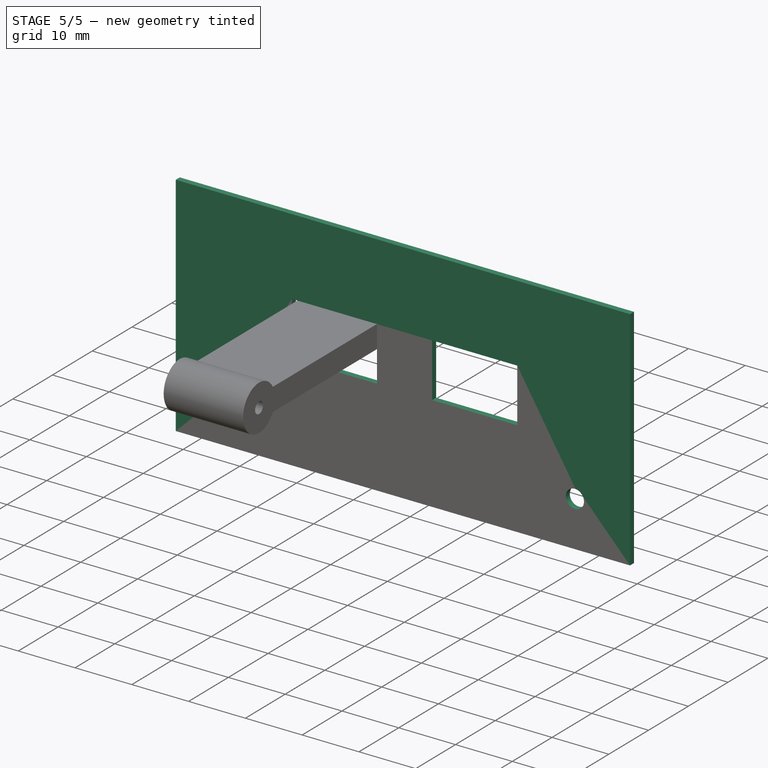
[diagram: stage 5 of 5 — iso view after this stage's code; geometry added in this stage tinted green]
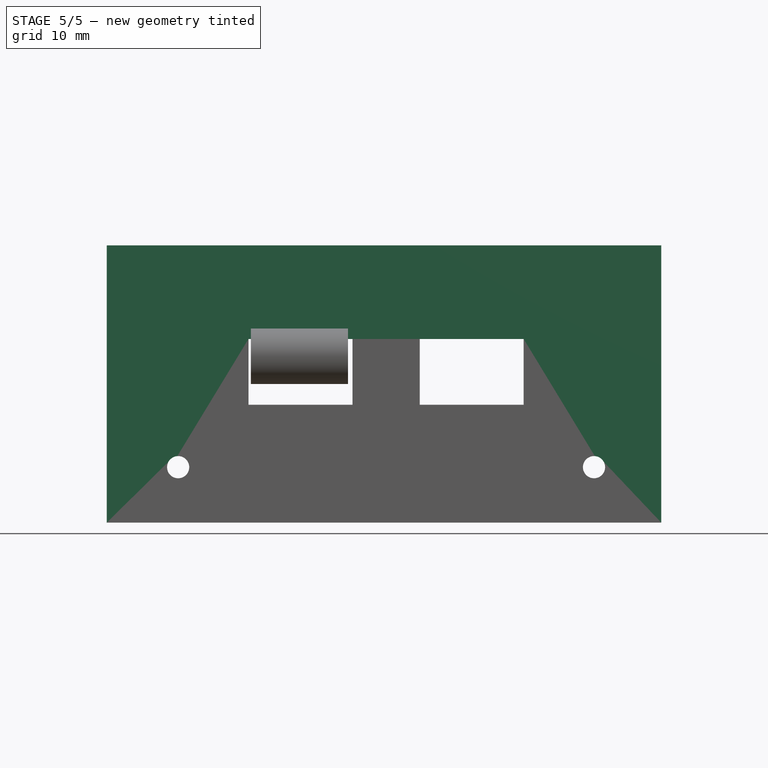
[diagram: stage 5 of 5 — front view after this stage's code; geometry added in this stage tinted green]
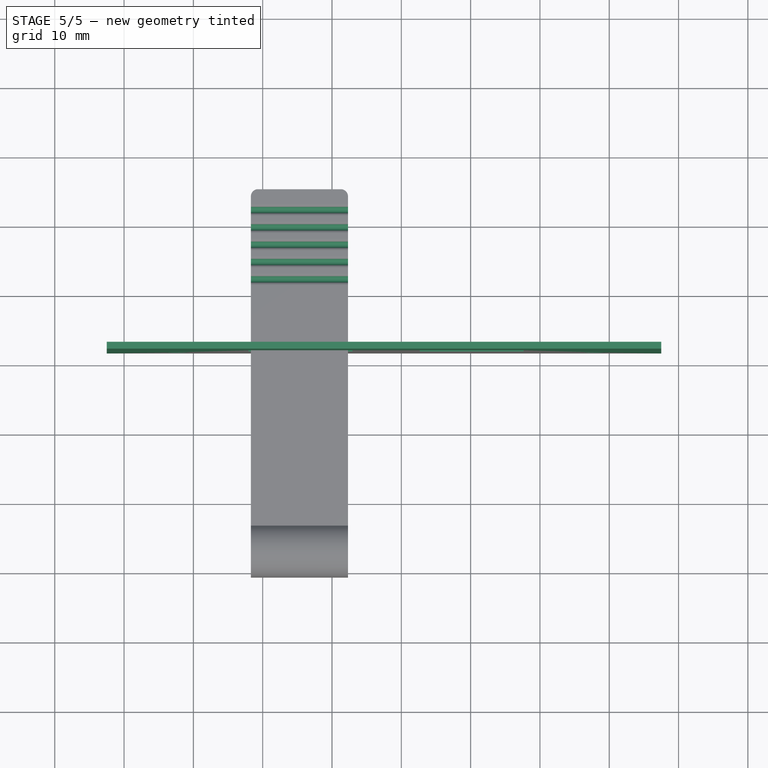
[diagram: stage 5 of 5 — top view after this stage's code; geometry added in this stage tinted green]
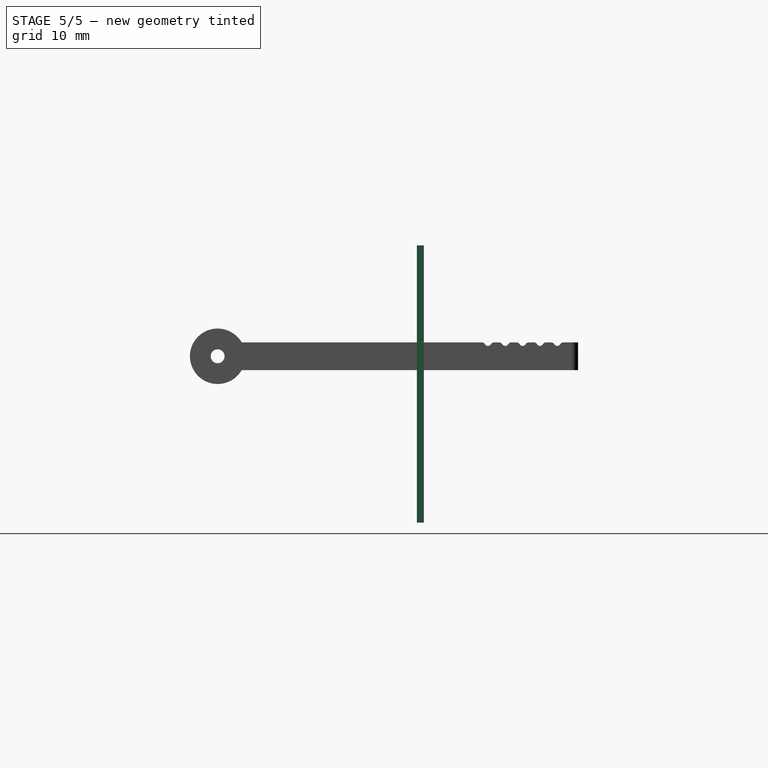
[diagram: stage 5 of 5 — right view after this stage's code; geometry added in this stage tinted green]
FEATURE [PartDesign::Body] Body001  label="drzak_spinacu"
  AllowCompound = false
  Group = -> [Binder,Sketch003,Pad002,Sketch004,Pad003,Sketch005,Pocket001,Sketch006,Pad004,Sketch007,Pad005,Sketch013,Pocket005,Binder001,Sketch014,Pad006,Sketch015,Pocket006,Sketch016,Pocket007,Sketch017,Pocket008,Sketch018,Pad007,Mirrored,DatumPlane,Sketch019,Pocket009]
  Origin = -> Origin002
  Tip = -> Pocket009
FEATURE [PartDesign::SubShapeBinder] Binder002
  BindCopyOnChange = 0
  BindMode = 0
  ClaimChildren = false
  Context = -> Part [Body002.Binder002.]
  Fuse = false
  MakeFace = true
  OffsetFill = false
  OffsetIntersection = false
  OffsetJoinType = 0
  OffsetOpenResult = false
  PartialLoad = false
  Refine = true
  Relative = true
  Support = -> [Body001[Pocket009.Face2]]
  _Version = 2
FEATURE [PartDesign::SubShapeBinder] Binder003
  BindCopyOnChange = 0
  BindMode = 0
  ClaimChildren = false
  Context = -> Part [Body002.Binder003.]
  Fuse = false
  MakeFace = true
  OffsetFill = false
  OffsetIntersection = false
  OffsetJoinType = 0
  OffsetOpenResult = false
  PartialLoad = false
  Refine = true
  Relative = true
  Support = -> [Body[Pocket004.Face28]]
  _Version = 2
FEATURE [Sketcher::SketchObject] Sketch020
  ArcFitTolerance = 1e-06
  AttachmentSupport = -> [Binder002]
  ExternalGeometry = -> [Binder002,Binder003]
  FullyConstrained = true
  MakeInternals = false
  MapMode = 5
  Placement = pos=(0,1.75,0) rot=(0,0.707107,0.707107;3.14159rad)
  sketch-geometry (17):
    g0: LineSegment StartX=-27.5 StartY=-24 StartZ=0 EndX=52.5 EndY=-24 EndZ=0
    g1: LineSegment StartX=52.5 StartY=-24 StartZ=0 EndX=52.5 EndY=16 EndZ=0
    g2: LineSegment StartX=52.5 StartY=16 StartZ=0 EndX=-27.5 EndY=16 EndZ=0
    g3: LineSegment StartX=-27.5 StartY=16 StartZ=0 EndX=-27.5 EndY=-24 EndZ=0
    g4: LineSegment [constr] StartX=-7.5 StartY=5 StartZ=0 EndX=7.2 EndY=5 EndZ=0
    g5: LineSegment StartX=-7.65 StartY=2.5 StartZ=0 EndX=-7.65 EndY=-7 EndZ=0
    g6: LineSegment StartX=-7.65 StartY=-7 StartZ=0 EndX=7.35 EndY=-7 EndZ=0
    g7: LineSegment StartX=7.35 StartY=-7 StartZ=0 EndX=7.35 EndY=2.5 EndZ=0
    g8: LineSegment StartX=7.35 StartY=2.5 StartZ=0 EndX=-7.65 EndY=2.5 EndZ=0
    g9: LineSegment StartX=17.05 StartY=2.5 StartZ=0 EndX=17.05 EndY=-7 EndZ=0
    g10: LineSegment StartX=17.05 StartY=-7 StartZ=0 EndX=32.05 EndY=-7 EndZ=0
    g11: LineSegment StartX=32.05 StartY=-7 StartZ=0 EndX=32.05 EndY=2.5 EndZ=0
    g12: LineSegment StartX=32.05 StartY=2.5 StartZ=0 EndX=17.05 EndY=2.5 EndZ=0
    g13: LineSegment [constr] StartX=-0.15 StartY=5 StartZ=0 EndX=-0.15 EndY=-22 EndZ=0
    g14: LineSegment [constr] StartX=12.2 StartY=5 StartZ=0 EndX=12.2 EndY=-22 EndZ=0
    g15: Circle CenterX=-17.8 CenterY=-16 CenterZ=0 NormalX=0 NormalY=0 NormalZ=1 AngleXU=0 Radius=1.6
    g16: Circle CenterX=42.2 CenterY=-16 CenterZ=0 NormalX=0 NormalY=0 NormalZ=1 AngleXU=0 Radius=1.6
  constraints (50):
    c: Coincident(g0,g1)
    c: Coincident(g1,g2)
    c: Coincident(g2,g3)
    c: Coincident(g3,g0)
    c: Horizontal(g0)
    c: Horizontal(g2)
    c: Vertical(g1)
    c: Vertical(g3)
    c: DistanceX(g0,g0) = 80
    c: DistanceY(g3,g3) = 40
    c: DistanceX(g0,g-9) = 5
    c: Coincident(g4,g-5)
    c: Coincident(g4,g-11)
    c: Coincident(g5,g6)
    c: Coincident(g6,g7)
    c: Coincident(g7,g8)
    c: Coincident(g8,g5)
    c: Vertical(g7)
    c: Horizontal(g6)
    c: DistanceX(g8,g8) = 15
    c: DistanceY(g5,g5) = 9.5
    c: Coincident(g9,g10)
    c: Coincident(g10,g11)
    c: Coincident(g11,g12)
    c: Coincident(g12,g9)
    c: Vertical(g9)
    c: Vertical(g11)
    c: Horizontal(g10)
    c: Horizontal(g12)
    c: Equal(g5,g9)
    c: Symmetric(g4,g4,g13)
    c: PointOnObject(g13,g-9)
    c: Horizontal(g8)
    c: Vertical(g5)
    c: Symmetric(g5,g6,g13)
    c: Equal(g8,g12)
    c: DistanceY(g-12,g5) = 0.5
    c: Symmetric(g-11,g-11,g14)
    c: Symmetric(g-9,g-9,g14)
    c: Symmetric(g7,g9,g14)
    c: Coincident(g15,g-3)
    c: Equal(g15,g-3)
    c: Coincident(g16,g-4)
    c: Equal(g16,g-4)
    c: DistanceX(g15,g16) = 60
    c: DistanceY(g0,g5) = 17
    c: DistanceY(g16,g10) = 9
    c: DistanceY(g11,g11) = 9.5
    c: DistanceX(g12,g12) = 15
    c: DistanceX(g7,g9) = 9.7
FEATURE [PartDesign::Pad] Pad008
  Direction = (0,1,-2e-16)
  Length = 1
  Length2 = 10
  Profile = -> Sketch020
  ReferenceAxis = -> Sketch020 [N_Axis]
  Refine = true
  Suppressed = false
  Type = 0
FEATURE [Sketcher::SketchObject] Sketch022
  ArcFitTolerance = 1e-06
  AttachmentSupport = -> [Fillet002]
  ExternalGeometry = -> [Binder004]
  FullyConstrained = true
  MakeInternals = false
  MapMode = 5
  Placement = pos=(-31.7,0,0) rot=(0.57735,-0.57735,-0.57735;2.0944rad)
  sketch-geometry (1):
    g0: Circle CenterX=-22 CenterY=2 CenterZ=0 NormalX=0 NormalY=0 NormalZ=1 AngleXU=0 Radius=0.5
  constraints (2):
    c: Coincident(g0,g-3)
    c: PointOnObject(g-3,g0)
FEATURE [PartDesign::Pocket] Pocket010
  BaseFeature = -> Fillet002
  Direction = (1,0,0)
  Length = 0
  Length2 = 5
  Placement = pos=(-24.7,0,0) rot=(0,0,1;0rad)
  Profile = -> Sketch022
  ReferenceAxis = -> Sketch022 [N_Axis]
  Refine = true
  Suppressed = false
  Type = 3
  UpToFace = -> Fillet002 [Face6]
FEATURE [PartDesign::LinearPattern] LinearPattern001
  BaseFeature = -> Pocket010
  Direction = -> Binder004 [Edge9]
  Length = 10
  Mode = 0
  Occurrences = 5
  Offset = 2.5
  Originals = -> [Pocket010]
  Placement = pos=(-24.7,0,0) rot=(0,0,1;0rad)
  Refine = true
  Suppressed = false
  TransformMode = 0
FEATURE [PartDesign::Fillet] Fillet003
  Base = -> LinearPattern001 [Edge4,Edge25,Edge50,Edge49,Edge48,Edge47,Edge46,Edge45,Edge44,Edge42]
  BaseFeature = -> LinearPattern001
  Placement = pos=(-24.7,0,0) rot=(0,0,1;0rad)
  Radius = 0.5
  Refine = true
  SupportTransform = false
  Suppressed = false
  UseAllEdges = false
FEATURE [PartDesign::SubShapeBinder] Binder005
  BindCopyOnChange = 0
  BindMode = 0
  ClaimChildren = false
  Context = -> Part [Body003.Binder005.]
  Fuse = false
  MakeFace = true
  OffsetFill = false
  OffsetIntersection = false
  OffsetJoinType = 0
  OffsetOpenResult = false
  PartialLoad = false
  Placement = pos=(-24.7,0,0) rot=(0,0,1;0rad)
  Refine = true
  Relative = true
  Support = -> [Body[Pocket004.Face6]]
  _Version = 2
FEATURE [Sketcher::SketchObject] Sketch023
  ArcFitTolerance = 1e-06
  AttachmentSupport = -> [Fillet003]
  ExternalGeometry = -> [Binder005]
  FullyConstrained = true
  MakeInternals = false
  MapMode = 5
  Placement = pos=(-24.7,3.3e-15,-2) rot=(1,0,0;3.14159rad)
  sketch-geometry (1):
    g0: Circle CenterX=0 CenterY=4 CenterZ=0 NormalX=0 NormalY=0 NormalZ=1 AngleXU=0 Radius=3.75
  constraints (2):
    c: Coincident(g0,g-3)
    c: Equal(g0,g-3)
FEATURE [PartDesign::Pocket] Pocket011
  BaseFeature = -> Fillet003
  Direction = (0,-1.7e-15,1)
  Length = 1
  Length2 = 5
  Placement = pos=(-24.7,0,0) rot=(0,0,1;0rad)
  Profile = -> Sketch023
  ReferenceAxis = -> Sketch023 [N_Axis]
  Refine = true
  Suppressed = false
  Type = 0
FEATURE [PartDesign::Body] Body003  label="packa2"
  AllowCompound = false
  Group = -> [Binder004,Sketch021,Pad009,Fillet002,Sketch022,Pocket010,LinearPattern001,Fillet003,Binder005,Sketch023,Pocket011]
  Origin = -> Origin004
  Tip = -> Pocket011
FEATURE [PartDesign::SubShapeBinder] Binder006
  BindCopyOnChange = 0
  BindMode = 0
  ClaimChildren = false
  Context = -> Part [Body002.Binder006.]
  Fuse = false
  MakeFace = true
  OffsetFill = false
  OffsetIntersection = false
  OffsetJoinType = 0
  OffsetOpenResult = false
  PartialLoad = false
  Refine = true
  Relative = true
  Support = -> [Body001[Pocket009.Face50,Pocket009.Face44,Pocket009.Face70,Pocket009.Face64]]
  _Version = 2
FEATURE [PartDesign::Body] Body002  label="panel"
  AllowCompound = false
  Group = -> [Binder002,Binder003,Sketch020,Pad008,Binder006]
  Origin = -> Origin003
  Tip = -> Pad008
FEATURE [App::Part] Part
  Group = -> [Body,Body003,Body001,Body002]
  Origin = -> Origin
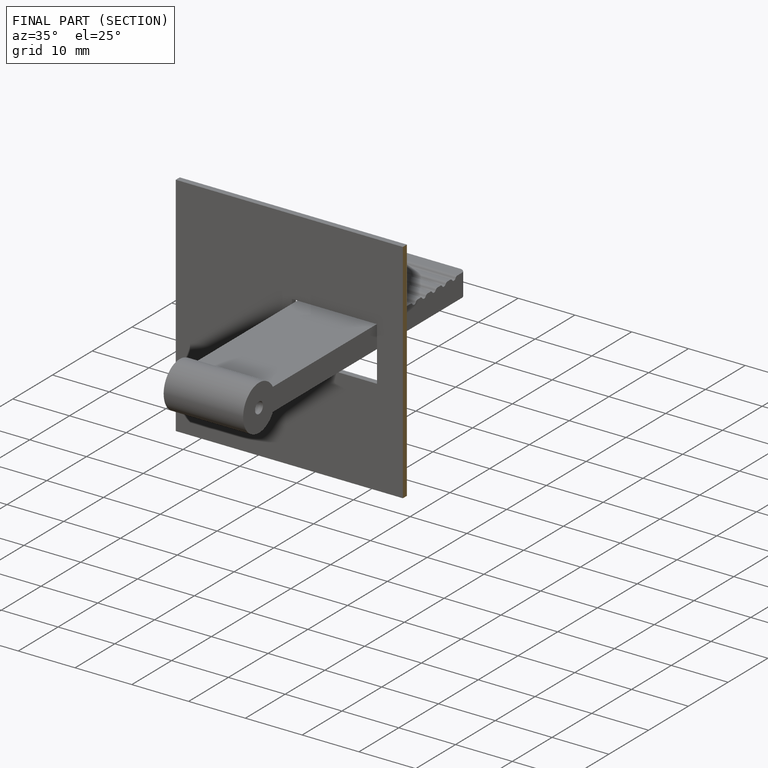
[diagram: finished part — half-section view (interior)]
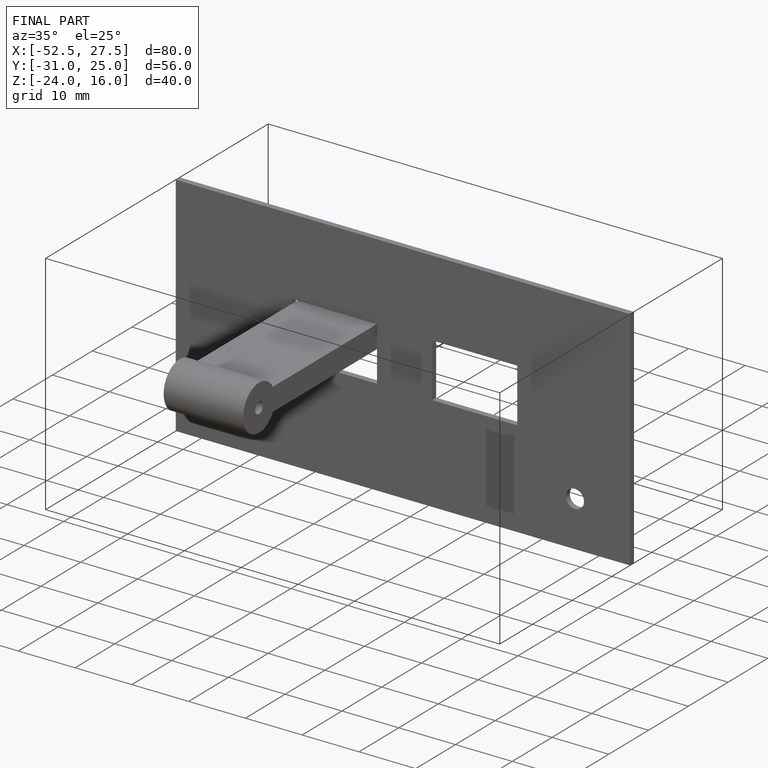
[diagram: finished part — iso view with bounding-box wireframe]
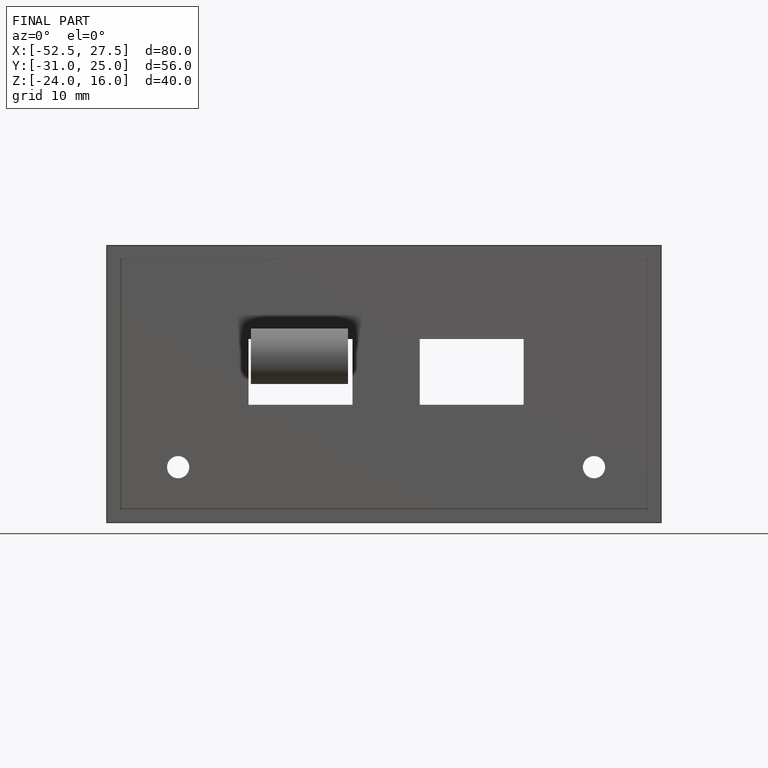
[diagram: finished part — front view with bounding-box wireframe]
